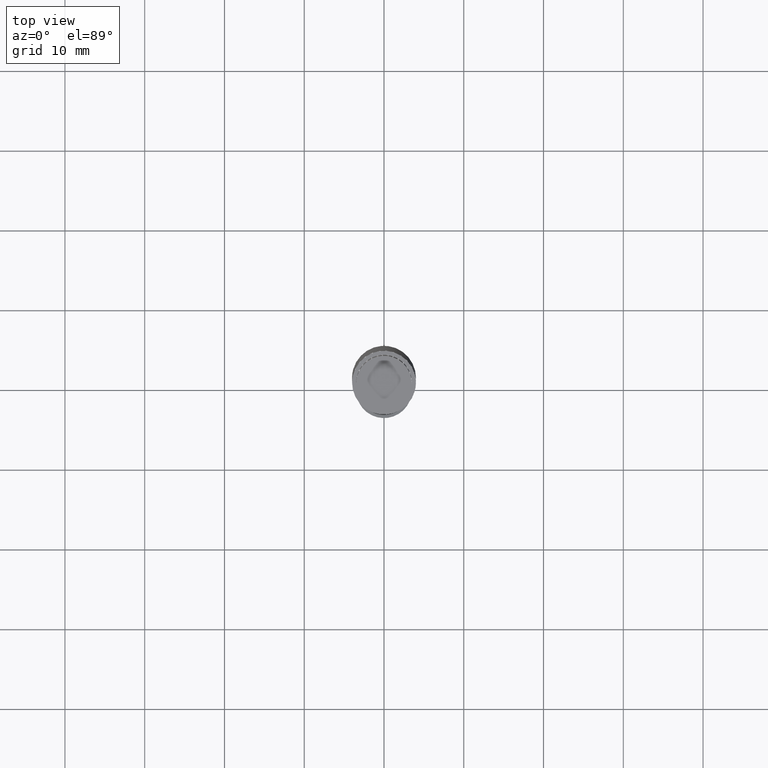
[diagram: clean part render]
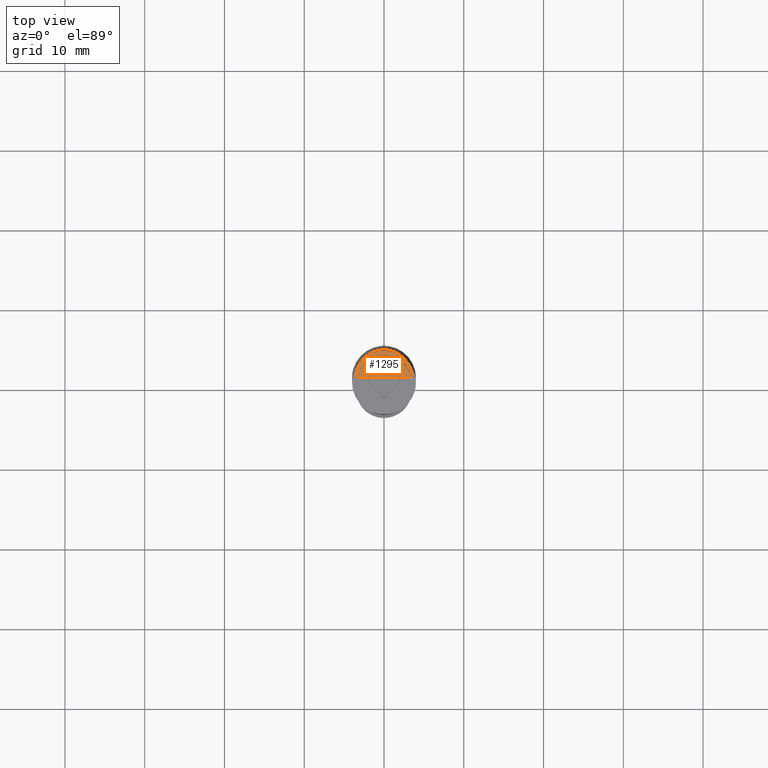
[diagram: same view with one face highlighted and labeled with its STEP entity id]
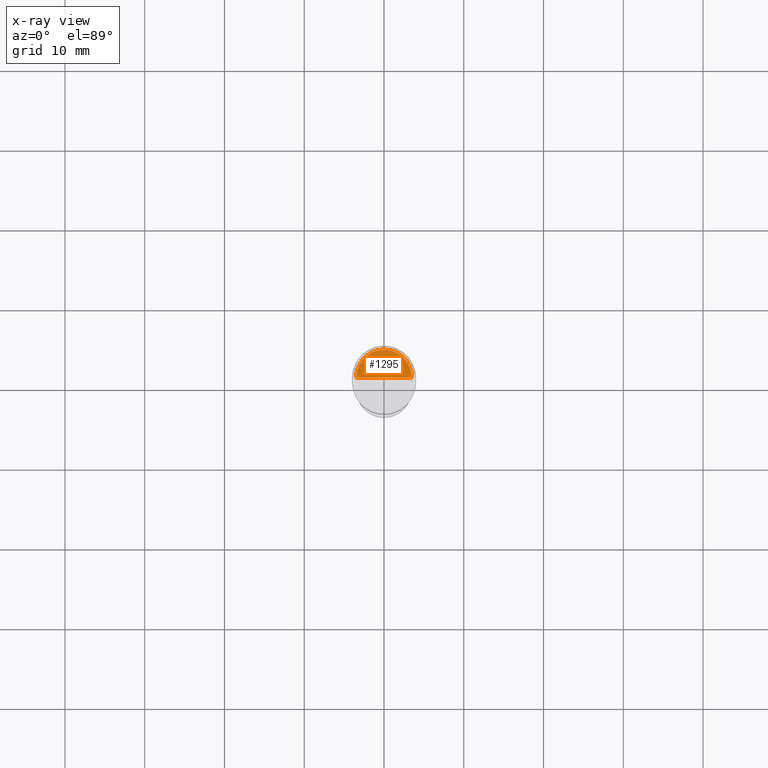
[diagram: x-ray of the same camera — body ghosted, the highlighted face saturated]
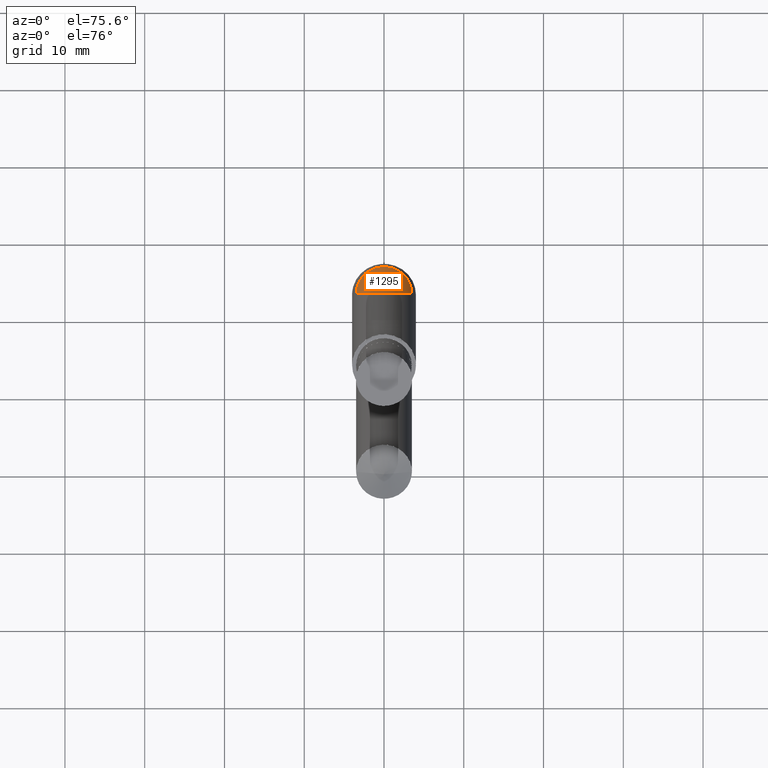
[diagram: same view with one face highlighted and labeled with its STEP entity id]
A machine part, top view. The second image highlights one B-rep face of the part: STEP entity #1295.
The next image is the same camera in x-ray: the body ghosted, the highlighted face saturated — about 0% of this face is hidden behind the body in this view.
A second angle (auxiliary view) of the same face is appended — the face is thin or edge-on in the first view.
In plain terms, the highlighted face is a freeform B-spline surface patch.
Its self-contained STEP definition (entity closure, byte-faithful):
#1030=CARTESIAN_POINT('',(3.5,0.0,36.0));
#1031=CARTESIAN_POINT('',(3.5,3.5,36.0));
#1032=CARTESIAN_POINT('',(0.0,3.5,36.0));
#1033=CARTESIAN_POINT('',(-3.5,3.5,36.0));
#1034=CARTESIAN_POINT('',(-3.5,0.0,36.0));
#1035=CARTESIAN_POINT('',(0.0,0.0,36.0));
#1280=(
BOUNDED_SURFACE()
B_SPLINE_SURFACE(1,2,(
(#1030,#1031,#1032,#1033,#1034),
(#1035,#1035,#1035,#1035,#1035)
), .UNSPECIFIED.,.F.,.F.,.F.)
B_SPLINE_SURFACE_WITH_KNOTS((2,2),(3,2,3),(
0.0,1.0),(
0.0,0.5,1.0), .UNSPECIFIED.)
GEOMETRIC_REPRESENTATION_ITEM()
RATIONAL_B_SPLINE_SURFACE(((1.0,0.707106781187,1.0,0.707106781187,1.0),
(1.0,0.707106781187,1.0,0.707106781187,1.0)
))
REPRESENTATION_ITEM('')
SURFACE()
);
#1281=(
BOUNDED_CURVE()
B_SPLINE_CURVE(2,(#1034,#1033,#1032,#1031,#1030),.UNSPECIFIED.,.F.,.F.)
B_SPLINE_CURVE_WITH_KNOTS((3,2,3),
(0.0,0.5,1.0),.UNSPECIFIED.)
CURVE()
GEOMETRIC_REPRESENTATION_ITEM()
RATIONAL_B_SPLINE_CURVE((1.0,0.707106781187,1.0,0.707106781187,1.0))
REPRESENTATION_ITEM('')
);
#1282=(
BOUNDED_CURVE()
B_SPLINE_CURVE(1,(#1030,#1035),.UNSPECIFIED.,.F.,.F.)
B_SPLINE_CURVE_WITH_KNOTS((2,2),
(0.0,1.0),.UNSPECIFIED.)
CURVE()
GEOMETRIC_REPRESENTATION_ITEM()
RATIONAL_B_SPLINE_CURVE((1.0,1.0))
REPRESENTATION_ITEM('')
);
#1283=(
BOUNDED_CURVE()
B_SPLINE_CURVE(1,(#1035,#1034),.UNSPECIFIED.,.F.,.F.)
B_SPLINE_CURVE_WITH_KNOTS((2,2),
(0.0,1.0),.UNSPECIFIED.)
CURVE()
GEOMETRIC_REPRESENTATION_ITEM()
RATIONAL_B_SPLINE_CURVE((1.0,1.0))
REPRESENTATION_ITEM('')
);
#1284=VERTEX_POINT('',#1030);
#1285=VERTEX_POINT('',#1034);
#1286=VERTEX_POINT('',#1035);
#1287=EDGE_CURVE('',#1285,#1284,#1281,.T.);
#1288=EDGE_CURVE('',#1284,#1286,#1282,.T.);
#1289=EDGE_CURVE('',#1286,#1285,#1283,.T.);
#1290=ORIENTED_EDGE('',*,*,#1287,.T.);
#1291=ORIENTED_EDGE('',*,*,#1288,.T.);
#1292=ORIENTED_EDGE('',*,*,#1289,.T.);
#1293=EDGE_LOOP('',(#1290,#1291,#1292));
#1294=FACE_OUTER_BOUND('',#1293,.T.);
#1295=ADVANCED_FACE('',(#1294),#1280,.T.);